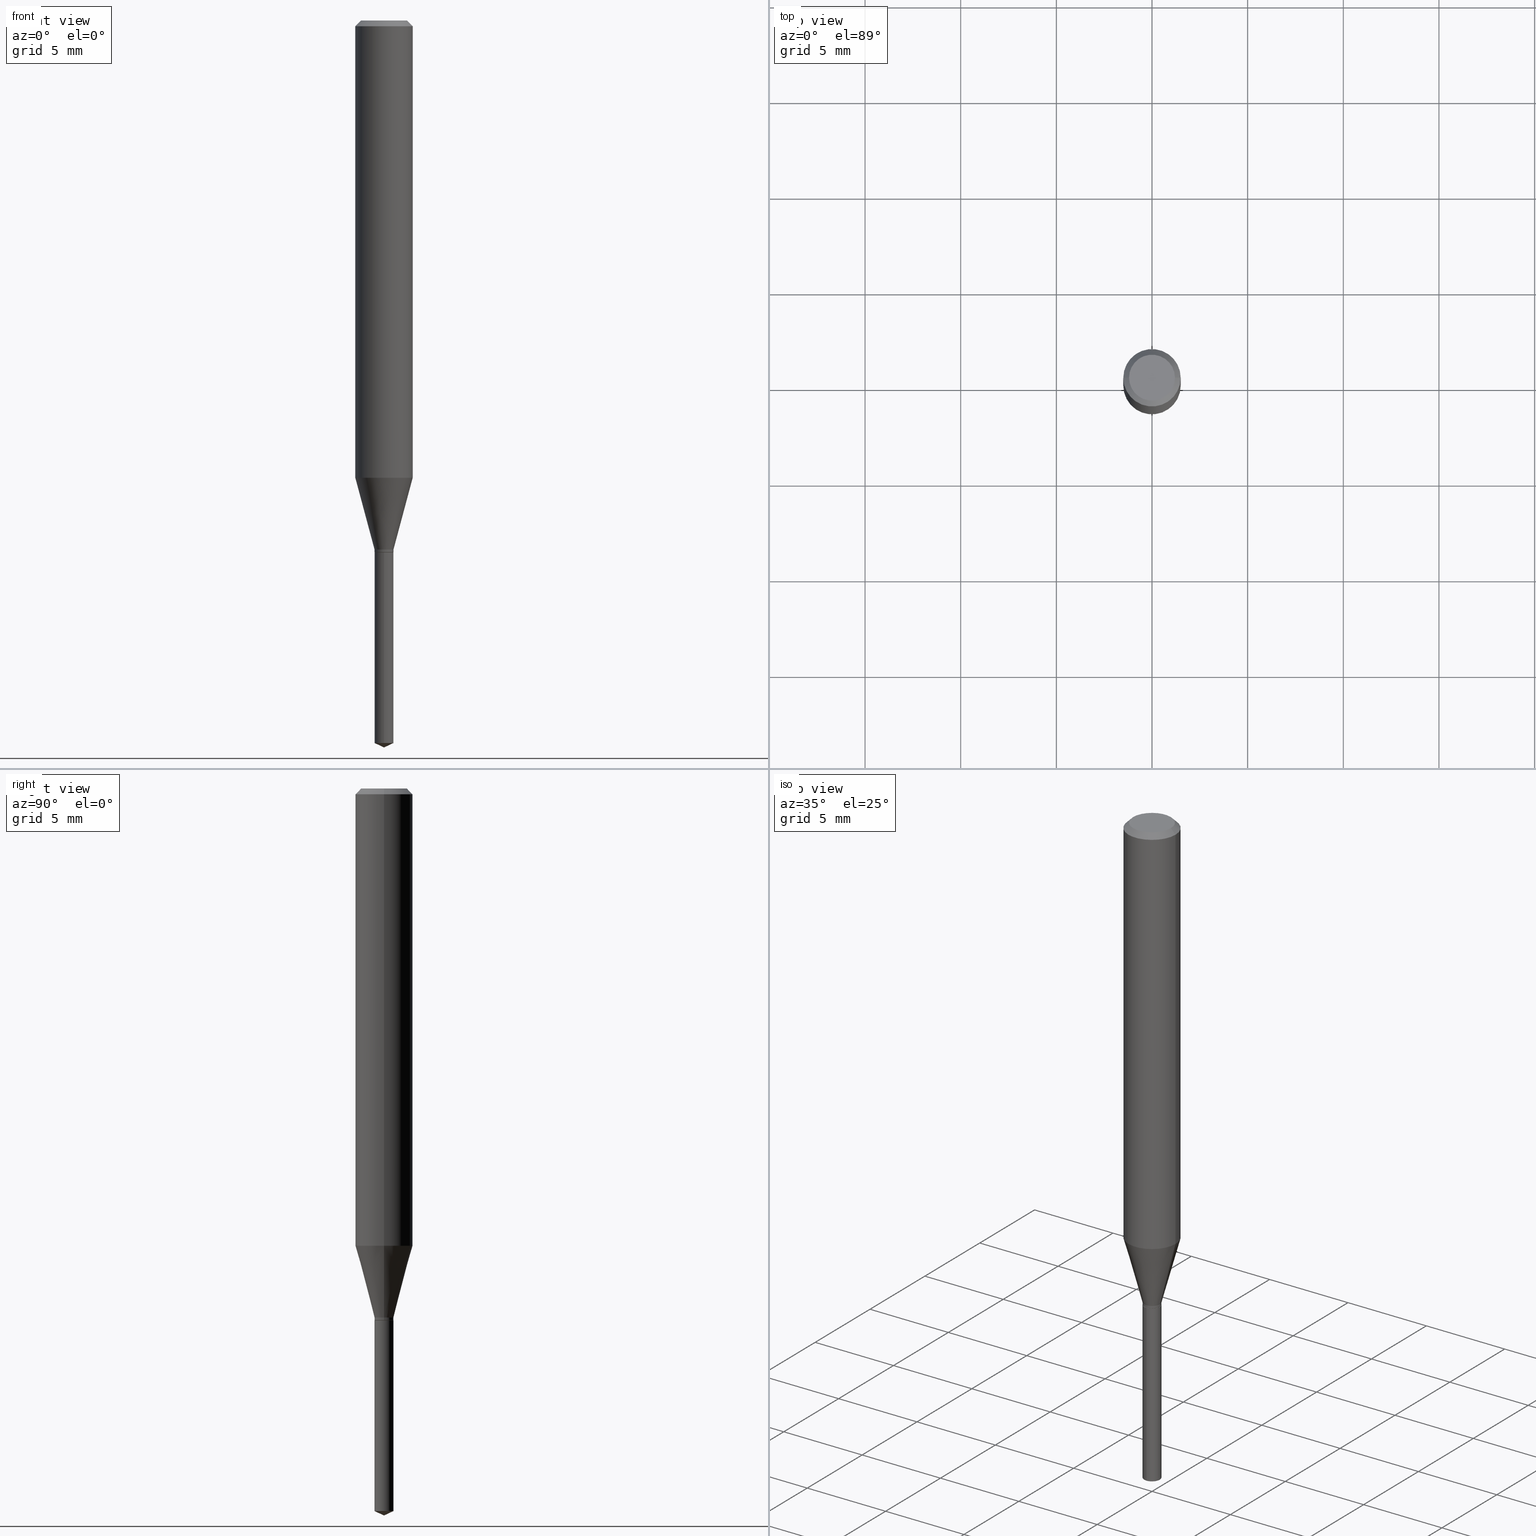
[diagram: canonical four-view strip — front | top / right | iso, engineering-drawing reading convention]
A machine part, canonical four-view strip (front | top / right | iso — engineering-drawing reading convention). The complete STEP part file that produces these views, byte-faithful:
ISO-10303-21;
HEADER;
FILE_DESCRIPTION (( 'STEP AP203' ),
    '1' );
FILE_NAME ('08328.STEP',
    '2024-04-24T14:21:45',
    ( '' ),
    ( '' ),
    'SwSTEP 2.0',
    'SolidWorks 2023',
    '' );
FILE_SCHEMA (( 'CONFIG_CONTROL_DESIGN' ));
ENDSEC;

DATA;
#1 = LINE ( 'NONE', #167, #38 ) ;
#2 = ORIENTED_EDGE ( 'NONE', *, *, #42, .T. ) ;
#3 = CC_DESIGN_PERSON_AND_ORGANIZATION_ASSIGNMENT ( #322, #23, ( #391 ) ) ;
#4 = LOCAL_TIME ( 10, 21, 45.00000000000000000, #428 ) ;
#5 = DIRECTION ( 'NONE',  ( 2.445460715294871217E-29, -3.491492925458510144E-15, -1.000000000000000000 ) ) ;
#6 = EDGE_LOOP ( 'NONE', ( #488, #2, #330, #443 ) ) ;
#7 = FACE_OUTER_BOUND ( 'NONE', #482, .T. ) ;
#8 = ORIENTED_EDGE ( 'NONE', *, *, #270, .F. ) ;
#9 = DIRECTION ( 'NONE',  ( -6.982962677686264344E-15, -1.000000000000000000, 0.000000000000000000 ) ) ;
#10 = DIRECTION ( 'NONE',  ( -2.445468806185136597E-29, 3.491481338843145583E-15, 1.000000000000000000 ) ) ;
#11 = CLOSED_SHELL ( 'NONE', ( #99, #201, #25, #117, #107, #365, #134, #85, #303, #248, #368, #324 ) ) ;
#12 = CC_DESIGN_APPROVAL ( #413, ( #459 ) ) ;
#13 = FACE_OUTER_BOUND ( 'NONE', #263, .T. ) ;
#14 = PERSON_AND_ORGANIZATION ( #34, #298 ) ;
#15 = CARTESIAN_POINT ( 'NONE',  ( 2.888098660104663328E-31, -4.123439461173779030E-17, -0.01181000000000006871 ) ) ;
#16 = PERSON_AND_ORGANIZATION ( #34, #298 ) ;
#17 = CARTESIAN_POINT ( 'NONE',  ( 2.662137342413139764E-29, -3.800826585464648242E-15, -1.088600000000000012 ) ) ;
#18 = CC_DESIGN_DATE_AND_TIME_ASSIGNMENT ( #52, #176, ( #391 ) ) ;
#19 = APPROVAL_STATUS ( 'not_yet_approved' ) ;
#20 = CONICAL_SURFACE ( 'NONE', #408, 0.01899999999999999953, 0.7853981633974119747 ) ;
#21 = DIRECTION ( 'NONE',  ( -2.445468806185136597E-29, 3.491481338843145583E-15, 1.000000000000000000 ) ) ;
#22 = AXIS2_PLACEMENT_3D ( 'NONE', #446, #82, #9 ) ;
#23 = PERSON_AND_ORGANIZATION_ROLE ( 'creator' ) ;
#24 = DIRECTION ( 'NONE',  ( -6.982962677686264344E-15, -1.000000000000000000, 0.000000000000000000 ) ) ;
#25 = ADVANCED_FACE ( 'NONE', ( #383 ), #410, .T. ) ;
#26 = DIRECTION ( 'NONE',  ( -2.445468806185136597E-29, 3.491481338843145583E-15, 1.000000000000000000 ) ) ;
#27 = DIRECTION ( 'NONE',  ( 1.000000000000000000, -6.982962677686266711E-15, 4.876185090822587894E-29 ) ) ;
#28 = ORIENTED_EDGE ( 'NONE', *, *, #58, .F. ) ;
#29 = CONICAL_SURFACE ( 'NONE', #202, 0.01899999999999999953, 0.7853981633974119747 ) ;
#30 = CARTESIAN_POINT ( 'NONE',  ( 8.265746106709734507E-48, -1.180129479067563789E-33, -3.380025165646692144E-19 ) ) ;
#31 = ORIENTED_EDGE ( 'NONE', *, *, #255, .T. ) ;
#32 = DIRECTION ( 'NONE',  ( -6.982962677686264344E-15, -1.000000000000000000, 0.000000000000000000 ) ) ;
#33 = ORIENTED_EDGE ( 'NONE', *, *, #49, .F. ) ;
#34 = PERSON ( 'UNSPECIFIED', 'UNSPECIFIED', 'UNSPECIFIED', ('UNSPECIFIED'), ('UNSPECIFIED'), ('UNSPECIFIED') ) ;
#35 = DIRECTION ( 'NONE',  ( 2.438088387897960049E-29, -3.491481338843145188E-15, -1.000000000000000000 ) ) ;
#36 = VERTEX_POINT ( 'NONE', #417 ) ;
#37 = CONICAL_SURFACE ( 'NONE', #369, 84.42940631927528727, 1.134464013796320225 ) ;
#38 = VECTOR ( 'NONE', #44, 39.37007874015748854 ) ;
#39 = CARTESIAN_POINT ( 'NONE',  ( -0.04724000000000000421, 3.504923541997677355E-16, -3.380025165670481712E-19 ) ) ;
#40 = ORIENTED_EDGE ( 'NONE', *, *, #470, .F. ) ;
#41 = APPLICATION_CONTEXT ( 'configuration controlled 3d designs of mechanical parts and assemblies' ) ;
#42 = EDGE_CURVE ( 'NONE', #476, #190, #81, .T. ) ;
#43 = ORIENTED_EDGE ( 'NONE', *, *, #58, .T. ) ;
#44 = DIRECTION ( 'NONE',  ( 0.2588190451025211281, 1.565188264969622954E-15, 0.9659258262890679791 ) ) ;
#45 = ORIENTED_EDGE ( 'NONE', *, *, #148, .T. ) ;
#46 = AXIS2_PLACEMENT_3D ( 'NONE', #15, #317, #59 ) ;
#47 = CONICAL_SURFACE ( 'NONE', #111, 0.05904999999999999832, 0.7853981633974452814 ) ;
#48 = ORIENTED_EDGE ( 'NONE', *, *, #255, .F. ) ;
#49 = EDGE_CURVE ( 'NONE', #75, #490, #120, .T. ) ;
#50 = APPLICATION_PROTOCOL_DEFINITION ( 'international standard', 'config_control_design', 1994, #41 ) ;
#51 = VERTEX_POINT ( 'NONE', #345 ) ;
#52 = DATE_AND_TIME ( #218, #154 ) ;
#53 = DESIGN_CONTEXT ( 'detailed design', #402, 'design' ) ;
#54 = ORIENTED_EDGE ( 'NONE', *, *, #475, .T. ) ;
#55 = APPROVAL_ROLE ( '' ) ;
#56 = DIRECTION ( 'NONE',  ( 2.445468806185136597E-29, -3.491481338843145583E-15, -1.000000000000000000 ) ) ;
#57 = PERSON_AND_ORGANIZATION_ROLE ( 'design_owner' ) ;
#58 = EDGE_CURVE ( 'NONE', #476, #438, #129, .T. ) ;
#59 = DIRECTION ( 'NONE',  ( 1.000000000000000000, -6.982962677686266711E-15, 0.000000000000000000 ) ) ;
#60 = PERSON_AND_ORGANIZATION ( #34, #298 ) ;
#61 = DIRECTION ( 'NONE',  ( -2.445468806185136597E-29, 3.491481338843145583E-15, 1.000000000000000000 ) ) ;
#62 = AXIS2_PLACEMENT_3D ( 'NONE', #373, #272, #412 ) ;
#63 = DIRECTION ( 'NONE',  ( 1.000000000000000000, -6.982962677686258033E-15, 0.000000000000000000 ) ) ;
#64 = AXIS2_PLACEMENT_3D ( 'NONE', #149, #229, #334 ) ;
#65 = EDGE_CURVE ( 'NONE', #490, #75, #138, .T. ) ;
#66 = FACE_OUTER_BOUND ( 'NONE', #407, .T. ) ;
#67 = CARTESIAN_POINT ( 'NONE',  ( 0.000000000000000000, 0.000000000000000000, 0.000000000000000000 ) ) ;
#68 = ORIENTED_EDGE ( 'NONE', *, *, #451, .T. ) ;
#69 = FACE_OUTER_BOUND ( 'NONE', #278, .T. ) ;
#70 = AXIS2_PLACEMENT_3D ( 'NONE', #285, #56, #212 ) ;
#71 = AXIS2_PLACEMENT_3D ( 'NONE', #124, #5, #311 ) ;
#72 = CARTESIAN_POINT ( 'NONE',  ( 2.888098660104663328E-31, -4.123439461173779030E-17, -0.01181000000000006871 ) ) ;
#73 = CC_DESIGN_PERSON_AND_ORGANIZATION_ASSIGNMENT ( #14, #90, ( #459 ) ) ;
#74 = DIRECTION ( 'NONE',  ( -2.445460715294871217E-29, 3.491492925458510144E-15, 1.000000000000000000 ) ) ;
#75 = VERTEX_POINT ( 'NONE', #325 ) ;
#76 = DIRECTION ( 'NONE',  ( -6.982962677686264344E-15, -1.000000000000000000, 0.000000000000000000 ) ) ;
#77 = ORIENTED_EDGE ( 'NONE', *, *, #207, .T. ) ;
#78 = VECTOR ( 'NONE', #386, 39.37007874015748143 ) ;
#79 = EDGE_CURVE ( 'NONE', #305, #75, #467, .T. ) ;
#80 = LINE ( 'NONE', #271, #171 ) ;
#81 = LINE ( 'NONE', #237, #240 ) ;
#82 = DIRECTION ( 'NONE',  ( -2.445460715294871217E-29, 3.491492925458510144E-15, 1.000000000000000000 ) ) ;
#83 = ORIENTED_EDGE ( 'NONE', *, *, #433, .T. ) ;
#84 = DIRECTION ( 'NONE',  ( 0.000000000000000000, 0.000000000000000000, 1.000000000000000000 ) ) ;
#85 = ADVANCED_FACE ( 'NONE', ( #471 ), #395, .T. ) ;
#86 = EDGE_LOOP ( 'NONE', ( #453, #378, #68, #192 ) ) ;
#87 = CIRCLE ( 'NONE', #46, 0.05904999999999999832 ) ;
#88 =( NAMED_UNIT ( * ) PLANE_ANGLE_UNIT ( ) SI_UNIT ( $, .RADIAN. ) );
#89 = ORIENTED_EDGE ( 'NONE', *, *, #284, .T. ) ;
#90 = PERSON_AND_ORGANIZATION_ROLE ( 'creator' ) ;
#91 = ORIENTED_EDGE ( 'NONE', *, *, #470, .T. ) ;
#92 = DATE_AND_TIME ( #385, #139 ) ;
#93 = DIRECTION ( 'NONE',  ( 6.439704144417042975E-15, 0.9063077870366539335, 0.4226182617406908926 ) ) ;
#94 = EDGE_CURVE ( 'NONE', #36, #170, #448, .T. ) ;
#95 = VECTOR ( 'NONE', #225, 39.37007874015748143 ) ;
#96 = FACE_OUTER_BOUND ( 'NONE', #258, .T. ) ;
#97 = CARTESIAN_POINT ( 'NONE',  ( 0.000000000000000000, 0.000000000000000000, 0.000000000000000000 ) ) ;
#98 = DIRECTION ( 'NONE',  ( -6.982962677686264344E-15, -1.000000000000000000, 0.000000000000000000 ) ) ;
#99 = ADVANCED_FACE ( 'NONE', ( #251 ), #20, .T. ) ;
#100 = VECTOR ( 'NONE', #133, 39.37007874015748143 ) ;
#101 = DIRECTION ( 'NONE',  ( 1.000000000000000000, -6.982962677686255667E-15, 0.000000000000000000 ) ) ;
#102 = VECTOR ( 'NONE', #198, 39.37007874015748143 ) ;
#103 = DIRECTION ( 'NONE',  ( 1.000000000000000000, -6.982962677686266711E-15, 4.876185090822587894E-29 ) ) ;
#104 = ORIENTED_EDGE ( 'NONE', *, *, #79, .F. ) ;
#105 = FACE_OUTER_BOUND ( 'NONE', #128, .T. ) ;
#106 = VERTEX_POINT ( 'NONE', #245 ) ;
#107 = ADVANCED_FACE ( 'NONE', ( #13 ), #463, .T. ) ;
#108 = DIRECTION ( 'NONE',  ( 1.000000000000000000, -6.982962677686255667E-15, 0.000000000000000000 ) ) ;
#109 = ORIENTED_EDGE ( 'NONE', *, *, #356, .T. ) ;
#110 = AXIS2_PLACEMENT_3D ( 'NONE', #266, #74, #184 ) ;
#111 = AXIS2_PLACEMENT_3D ( 'NONE', #72, #437, #484 ) ;
#112 = MANIFOLD_SOLID_BREP ( 'Body-Move/Copy2[1]', #468 ) ;
#113 = FACE_OUTER_BOUND ( 'NONE', #227, .T. ) ;
#114 = ORIENTED_EDGE ( 'NONE', *, *, #356, .F. ) ;
#115 = DIRECTION ( 'NONE',  ( -2.445468806185136597E-29, 3.491481338843145583E-15, 1.000000000000000000 ) ) ;
#116 = ORIENTED_EDGE ( 'NONE', *, *, #380, .T. ) ;
#117 = ADVANCED_FACE ( 'NONE', ( #96 ), #231, .T. ) ;
#118 = LINE ( 'NONE', #160, #233 ) ;
#119 = VERTEX_POINT ( 'NONE', #220 ) ;
#120 = CIRCLE ( 'NONE', #185, 0.01949999999999999997 ) ;
#121 = CIRCLE ( 'NONE', #253, 0.05904999999999999832 ) ;
#122 = DIRECTION ( 'NONE',  ( 1.000000000000000000, -6.982962677686266711E-15, 0.000000000000000000 ) ) ;
#123 = ORIENTED_EDGE ( 'NONE', *, *, #65, .T. ) ;
#124 = CARTESIAN_POINT ( 'NONE',  ( 2.676565608369631794E-29, -3.821426325363822773E-15, -1.094499999999999806 ) ) ;
#125 = DIRECTION ( 'NONE',  ( -6.982962677686264344E-15, -1.000000000000000000, 0.000000000000000000 ) ) ;
#126 = LINE ( 'NONE', #238, #276 ) ;
#127 = CC_DESIGN_DATE_AND_TIME_ASSIGNMENT ( #92, #423, ( #219 ) ) ;
#128 = EDGE_LOOP ( 'NONE', ( #8, #405, #274 ) ) ;
#129 = CIRCLE ( 'NONE', #321, 0.05905000000000010935 ) ;
#130 = APPROVAL_PERSON_ORGANIZATION ( #250, #228, #55 ) ;
#131 = DIRECTION ( 'NONE',  ( 1.000000000000000000, -6.982962677686267499E-15, 0.000000000000000000 ) ) ;
#132 = APPROVAL_STATUS ( 'not_yet_approved' ) ;
#133 = DIRECTION ( 'NONE',  ( -0.7071067811865453523, 2.468850131082234184E-15, -0.7071067811865496822 ) ) ;
#134 = ADVANCED_FACE ( 'NONE', ( #353 ), #400, .T. ) ;
#135 = CALENDAR_DATE ( 2024, 24, 4 ) ;
#136 = CARTESIAN_POINT ( 'NONE',  ( -0.01899999999999999953, -3.683773978395292417E-15, -1.094499999999999806 ) ) ;
#137 = DATE_AND_TIME ( #135, #363 ) ;
#138 = CIRCLE ( 'NONE', #144, 0.01949999999999999997 ) ;
#139 = LOCAL_TIME ( 10, 21, 45.00000000000000000, #319 ) ;
#140 = DIRECTION ( 'NONE',  ( 1.000000000000000000, -6.982962677686258033E-15, 0.000000000000000000 ) ) ;
#141 = PRODUCT_RELATED_PRODUCT_CATEGORY ( 'detail', '', ( #388 ) ) ;
#142 = CARTESIAN_POINT ( 'NONE',  ( 2.676565608369631794E-29, -3.821426325363822773E-15, -1.094499999999999806 ) ) ;
#143 = DIRECTION ( 'NONE',  ( 1.000000000000000000, -6.982962677686258033E-15, 0.000000000000000000 ) ) ;
#144 = AXIS2_PLACEMENT_3D ( 'NONE', #254, #247, #98 ) ;
#145 = CARTESIAN_POINT ( 'NONE',  ( 0.05905000000000005383, -4.123439461173744271E-16, 2.879382386107502672E-30 ) ) ;
#146 = ORIENTED_EDGE ( 'NONE', *, *, #178, .T. ) ;
#147 = LINE ( 'NONE', #337, #102 ) ;
#148 = EDGE_CURVE ( 'NONE', #301, #51, #259, .T. ) ;
#149 = CARTESIAN_POINT ( 'NONE',  ( 2.676565608369631794E-29, -3.821426325363822773E-15, -1.094499999999999806 ) ) ;
#150 = ORIENTED_EDGE ( 'NONE', *, *, #222, .T. ) ;
#151 = DIRECTION ( 'NONE',  ( -2.445460715294871217E-29, 3.491492925458510144E-15, 1.000000000000000000 ) ) ;
#152 = AXIS2_PLACEMENT_3D ( 'NONE', #326, #35, #434 ) ;
#153 = EDGE_LOOP ( 'NONE', ( #338, #381, #91, #435 ) ) ;
#154 = LOCAL_TIME ( 10, 21, 45.00000000000000000, #421 ) ;
#155 = LINE ( 'NONE', #257, #333 ) ;
#156 = EDGE_CURVE ( 'NONE', #403, #190, #390, .T. ) ;
#157 = ORIENTED_EDGE ( 'NONE', *, *, #270, .T. ) ;
#158 = LENGTH_MEASURE_WITH_UNIT ( LENGTH_MEASURE( 0.02539999999999999897 ), #455 );
#159 = ORIENTED_EDGE ( 'NONE', *, *, #288, .T. ) ;
#160 = CARTESIAN_POINT ( 'NONE',  ( -0.01899999999999999953, -3.686423205569403618E-15, -1.094499999999999806 ) ) ;
#161 = UNCERTAINTY_MEASURE_WITH_UNIT (LENGTH_MEASURE( 1.000000000000000082E-05 ), #164, 'distance_accuracy_value', 'NONE');
#162 = ORIENTED_EDGE ( 'NONE', *, *, #94, .T. ) ;
#163 = VECTOR ( 'NONE', #479, 39.37007874015748143 ) ;
#164 =( CONVERSION_BASED_UNIT ( 'INCH', #158 ) LENGTH_UNIT ( ) NAMED_UNIT ( #454 ) );
#165 = ORIENTED_EDGE ( 'NONE', *, *, #42, .F. ) ;
#166 = EDGE_CURVE ( 'NONE', #106, #372, #283, .T. ) ;
#167 = CARTESIAN_POINT ( 'NONE',  ( 0.01949999999999999997, -3.936994357679530254E-15, -1.088600000000000012 ) ) ;
#168 = ORIENTED_EDGE ( 'NONE', *, *, #475, .F. ) ;
#169 = DIRECTION ( 'NONE',  ( -2.445460715294871217E-29, 3.491492925458510144E-15, 1.000000000000000000 ) ) ;
#170 = VERTEX_POINT ( 'NONE', #136 ) ;
#171 = VECTOR ( 'NONE', #309, 39.37007874015748143 ) ;
#172 = EDGE_CURVE ( 'NONE', #299, #119, #275, .T. ) ;
#173 = DIRECTION ( 'NONE',  ( -2.445468806185136597E-29, 3.491481338843145583E-15, 1.000000000000000000 ) ) ;
#174 = SHAPE_DEFINITION_REPRESENTATION ( #377, #441 ) ;
#175 = DIRECTION ( 'NONE',  ( -2.445468806185136597E-29, 3.491481338843145583E-15, 1.000000000000000000 ) ) ;
#176 = DATE_TIME_ROLE ( 'creation_date' ) ;
#177 = FACE_OUTER_BOUND ( 'NONE', #485, .T. ) ;
#178 = EDGE_CURVE ( 'NONE', #119, #299, #195, .T. ) ;
#179 = PERSON_AND_ORGANIZATION_ROLE ( 'design_supplier' ) ;
#180 = AXIS2_PLACEMENT_3D ( 'NONE', #360, #151, #32 ) ;
#181 = CIRCLE ( 'NONE', #379, 0.01899999999999999953 ) ;
#182 = DIRECTION ( 'NONE',  ( -2.445468806185136597E-29, 3.491481338843145583E-15, 1.000000000000000000 ) ) ;
#183 = DIRECTION ( 'NONE',  ( -2.445468806185136597E-29, 3.491481338843145583E-15, 1.000000000000000000 ) ) ;
#184 = DIRECTION ( 'NONE',  ( -6.982962677686266711E-15, -1.000000000000000000, 3.520397390770414427E-15 ) ) ;
#185 = AXIS2_PLACEMENT_3D ( 'NONE', #199, #200, #125 ) ;
#186 = CARTESIAN_POINT ( 'NONE',  ( 3.658653776152655930E-29, -5.223622565778476142E-15, -1.496099999999999985 ) ) ;
#187 = CC_DESIGN_PERSON_AND_ORGANIZATION_ASSIGNMENT ( #60, #57, ( #388 ) ) ;
#188 = EDGE_LOOP ( 'NONE', ( #302, #343 ) ) ;
#189 = CARTESIAN_POINT ( 'NONE',  ( 2.676565608369631794E-29, -3.821426325363822773E-15, -1.094499999999999806 ) ) ;
#190 = VERTEX_POINT ( 'NONE', #347 ) ;
#191 = CYLINDRICAL_SURFACE ( 'NONE', #355, 0.01949999999999999997 ) ;
#192 = ORIENTED_EDGE ( 'NONE', *, *, #166, .F. ) ;
#193 = EDGE_CURVE ( 'NONE', #75, #106, #389, .T. ) ;
#194 = DIRECTION ( 'NONE',  ( -6.328713451373388311E-15, -0.9063077870366510469, 0.4226182617406972208 ) ) ;
#195 = CIRCLE ( 'NONE', #295, 0.01949999999999999997 ) ;
#196 = ORIENTED_EDGE ( 'NONE', *, *, #172, .F. ) ;
#197 = CARTESIAN_POINT ( 'NONE',  ( -0.05905000000000010935, -2.865899343576267000E-15, -0.9409973905606506817 ) ) ;
#198 = DIRECTION ( 'NONE',  ( -2.445468806185136877E-29, 3.491481338843145188E-15, 1.000000000000000000 ) ) ;
#199 = CARTESIAN_POINT ( 'NONE',  ( 3.636426058976498027E-29, -5.191861741382022382E-15, -1.487007000665977685 ) ) ;
#200 = DIRECTION ( 'NONE',  ( -2.445460715294871217E-29, 3.491492925458510144E-15, 1.000000000000000000 ) ) ;
#201 = ADVANCED_FACE ( 'NONE', ( #177 ), #224, .T. ) ;
#202 = AXIS2_PLACEMENT_3D ( 'NONE', #367, #226, #108 ) ;
#203 = DIRECTION ( 'NONE',  ( 1.000000000000000000, 0.000000000000000000, 0.000000000000000000 ) ) ;
#204 = ORIENTED_EDGE ( 'NONE', *, *, #288, .F. ) ;
#205 = CARTESIAN_POINT ( 'NONE',  ( 0.000000000000000000, 0.000000000000000000, 0.000000000000000000 ) ) ;
#206 = ORIENTED_EDGE ( 'NONE', *, *, #451, .F. ) ;
#207 = EDGE_CURVE ( 'NONE', #51, #476, #351, .T. ) ;
#208 = APPROVAL_DATE_TIME ( #137, #228 ) ;
#209 = DIRECTION ( 'NONE',  ( -2.445468806185136597E-29, 3.491481338843145583E-15, 1.000000000000000000 ) ) ;
#210 = VECTOR ( 'NONE', #366, 39.37007874015748143 ) ;
#211 = COORDINATED_UNIVERSAL_TIME_OFFSET ( 5, 0, .BEHIND. ) ;
#212 = DIRECTION ( 'NONE',  ( -1.000000000000000000, 6.982962677686266711E-15, 0.000000000000000000 ) ) ;
#213 = CARTESIAN_POINT ( 'NONE',  ( 2.675342873966538993E-29, -3.819680584694400481E-15, -1.093999999999999861 ) ) ;
#214 = DATE_AND_TIME ( #349, #341 ) ;
#215 = DIRECTION ( 'NONE',  ( -2.445468806185136597E-29, 3.491481338843145583E-15, 1.000000000000000000 ) ) ;
#216 = CC_DESIGN_PERSON_AND_ORGANIZATION_ASSIGNMENT ( #242, #179, ( #459 ) ) ;
#217 = CONICAL_SURFACE ( 'NONE', #110, 84.42940631927528727, 1.134464013796320225 ) ;
#218 = CALENDAR_DATE ( 2024, 24, 4 ) ;
#219 = SECURITY_CLASSIFICATION ( '', '', #346 ) ;
#220 = CARTESIAN_POINT ( 'NONE',  ( -0.01949999999999999997, -3.671697751606305097E-15, -1.093999999999999861 ) ) ;
#221 = DIRECTION ( 'NONE',  ( -2.445468806185136597E-29, 3.491481338843145583E-15, 1.000000000000000000 ) ) ;
#222 = EDGE_CURVE ( 'NONE', #190, #361, #87, .T. ) ;
#223 = DIRECTION ( 'NONE',  ( -2.445460715294871217E-29, 3.491492925458510144E-15, 1.000000000000000000 ) ) ;
#224 = CONICAL_SURFACE ( 'NONE', #70, 0.05904999999999999832, 0.7853981633974452814 ) ;
#225 = DIRECTION ( 'NONE',  ( -2.445468806185136877E-29, 3.491481338843145188E-15, 1.000000000000000000 ) ) ;
#226 = DIRECTION ( 'NONE',  ( -2.445468806185136597E-29, 3.491481338843145583E-15, 1.000000000000000000 ) ) ;
#227 = EDGE_LOOP ( 'NONE', ( #114, #204, #307, #150 ) ) ;
#228 = APPROVAL ( #357, 'UNSPECIFIED' ) ;
#229 = DIRECTION ( 'NONE',  ( -2.438088387897960049E-29, 3.491481338843145188E-15, 1.000000000000000000 ) ) ;
#230 = CARTESIAN_POINT ( 'NONE',  ( 2.676565608369631794E-29, -3.821426325363822773E-15, -1.094499999999999806 ) ) ;
#231 = CONICAL_SURFACE ( 'NONE', #477, 0.01949999999999999997, 0.2617993877991498519 ) ;
#232 = ORIENTED_EDGE ( 'NONE', *, *, #222, .F. ) ;
#233 = VECTOR ( 'NONE', #304, 39.37007874015748143 ) ;
#234 =( NAMED_UNIT ( * ) SI_UNIT ( $, .STERADIAN. ) SOLID_ANGLE_UNIT ( ) );
#235 = EDGE_LOOP ( 'NONE', ( #162, #83, #196, #40 ) ) ;
#236 = ADVANCED_FACE ( 'NONE', ( #105 ), #217, .T. ) ;
#237 = CARTESIAN_POINT ( 'NONE',  ( -0.05905000000000005383, 4.195754854663395423E-16, -2.904631170795524694E-30 ) ) ;
#238 = CARTESIAN_POINT ( 'NONE',  ( -1.361677722148554121E-16, -0.01950000000000381983, -1.094499999999999806 ) ) ;
#239 = ORIENTED_EDGE ( 'NONE', *, *, #193, .T. ) ;
#240 = VECTOR ( 'NONE', #461, 39.37007874015748143 ) ;
#241 = ORIENTED_EDGE ( 'NONE', *, *, #318, .F. ) ;
#242 = PERSON_AND_ORGANIZATION ( #34, #298 ) ;
#243 = EDGE_LOOP ( 'NONE', ( #165, #43, #265, #232 ) ) ;
#244 = APPROVAL_ROLE ( '' ) ;
#245 = CARTESIAN_POINT ( 'NONE',  ( 1.385558334732559469E-16, 0.01949999999999617664, -1.094499999999999806 ) ) ;
#246 = AXIS2_PLACEMENT_3D ( 'NONE', #429, #61, #323 ) ;
#247 = DIRECTION ( 'NONE',  ( -2.445460715294871217E-29, 3.491492925458510144E-15, 1.000000000000000000 ) ) ;
#248 = ADVANCED_FACE ( 'NONE', ( #297 ), #444, .F. ) ;
#249 = CARTESIAN_POINT ( 'NONE',  ( 2.662137342413139764E-29, -3.800826585464648242E-15, -1.088600000000000012 ) ) ;
#250 = PERSON_AND_ORGANIZATION ( #34, #298 ) ;
#251 = FACE_OUTER_BOUND ( 'NONE', #235, .T. ) ;
#252 = VECTOR ( 'NONE', #424, 39.37007874015748854 ) ;
#253 = AXIS2_PLACEMENT_3D ( 'NONE', #371, #452, #122 ) ;
#254 = CARTESIAN_POINT ( 'NONE',  ( 3.636426058976498027E-29, -5.191861741382022382E-15, -1.487007000665977685 ) ) ;
#255 = EDGE_CURVE ( 'NONE', #372, #106, #339, .T. ) ;
#256 = CARTESIAN_POINT ( 'NONE',  ( 0.01949999999999999997, -3.955848356909282492E-15, -1.093999999999999861 ) ) ;
#257 = CARTESIAN_POINT ( 'NONE',  ( 3.658653776152657051E-29, -5.223622565778476142E-15, -1.496099999999999985 ) ) ;
#258 = EDGE_LOOP ( 'NONE', ( #45, #77, #340, #310 ) ) ;
#259 = CIRCLE ( 'NONE', #362, 0.01949999999999999997 ) ;
#260 = LINE ( 'NONE', #396, #163 ) ;
#261 = ADVANCED_FACE ( 'NONE', ( #66 ), #37, .T. ) ;
#262 = CIRCLE ( 'NONE', #426, 0.05905000000000010935 ) ;
#263 = EDGE_LOOP ( 'NONE', ( #445, #450, #267, #375 ) ) ;
#264 = FACE_OUTER_BOUND ( 'NONE', #188, .T. ) ;
#265 = ORIENTED_EDGE ( 'NONE', *, *, #335, .T. ) ;
#266 = CARTESIAN_POINT ( 'NONE',  ( -9.261931828548885815E-28, 1.322367415117763772E-13, 37.87397874015748300 ) ) ;
#267 = ORIENTED_EDGE ( 'NONE', *, *, #148, .F. ) ;
#268 = ORIENTED_EDGE ( 'NONE', *, *, #156, .F. ) ;
#269 = AXIS2_PLACEMENT_3D ( 'NONE', #205, #84, #203 ) ;
#270 = EDGE_CURVE ( 'NONE', #305, #490, #155, .T. ) ;
#271 = CARTESIAN_POINT ( 'NONE',  ( 0.01899999999999999953, -3.954102616239861778E-15, -1.094499999999999806 ) ) ;
#272 = DIRECTION ( 'NONE',  ( -2.445468806185136597E-29, 3.491481338843145583E-15, 1.000000000000000000 ) ) ;
#273 = CARTESIAN_POINT ( 'NONE',  ( 2.301179765317683209E-29, -3.285474829042607282E-15, -0.9409973905606506817 ) ) ;
#274 = ORIENTED_EDGE ( 'NONE', *, *, #65, .F. ) ;
#275 = CIRCLE ( 'NONE', #354, 0.01949999999999999997 ) ;
#276 = VECTOR ( 'NONE', #169, 39.37007874015748143 ) ;
#277 = PERSON_AND_ORGANIZATION ( #34, #298 ) ;
#278 = EDGE_LOOP ( 'NONE', ( #241, #146, #116, #168 ) ) ;
#279 = APPROVAL_ROLE ( '' ) ;
#280 = DIRECTION ( 'NONE',  ( -2.445460715294871217E-29, 3.491492925458510144E-15, 1.000000000000000000 ) ) ;
#281 = CALENDAR_DATE ( 2024, 24, 4 ) ;
#282 = DIRECTION ( 'NONE',  ( 1.000000000000000000, -6.982962677686266711E-15, 4.876176775795935793E-29 ) ) ;
#283 = CIRCLE ( 'NONE', #425, 0.01949999999999999997 ) ;
#284 = EDGE_CURVE ( 'NONE', #399, #403, #289, .T. ) ;
#285 = CARTESIAN_POINT ( 'NONE',  ( 2.888098660104663328E-31, -4.123439461173779030E-17, -0.01181000000000006871 ) ) ;
#286 = DIRECTION ( 'NONE',  ( 1.000000000000000000, -6.982962677686258033E-15, 0.000000000000000000 ) ) ;
#287 = DIRECTION ( 'NONE',  ( 1.000000000000000000, -6.982962677686258033E-15, 0.000000000000000000 ) ) ;
#288 = EDGE_CURVE ( 'NONE', #403, #399, #486, .T. ) ;
#289 = CIRCLE ( 'NONE', #348, 0.04724000000000000421 ) ;
#290 = CC_DESIGN_APPROVAL ( #228, ( #219 ) ) ;
#291 = LINE ( 'NONE', #300, #210 ) ;
#292 = CARTESIAN_POINT ( 'NONE',  ( 2.301179765317683209E-29, -3.285474829042607282E-15, -0.9409973905606506817 ) ) ;
#293 = DIRECTION ( 'NONE',  ( -2.445468806185136597E-29, 3.491481338843145583E-15, 1.000000000000000000 ) ) ;
#294 = EDGE_CURVE ( 'NONE', #438, #476, #262, .T. ) ;
#295 = AXIS2_PLACEMENT_3D ( 'NONE', #473, #175, #143 ) ;
#296 = APPROVAL_PERSON_ORGANIZATION ( #462, #350, #279 ) ;
#297 = FACE_OUTER_BOUND ( 'NONE', #456, .T. ) ;
#298 = ORGANIZATION ( 'UNSPECIFIED', 'UNSPECIFIED', '' ) ;
#299 = VERTEX_POINT ( 'NONE', #256 ) ;
#300 = CARTESIAN_POINT ( 'NONE',  ( -0.01949999999999999997, 1.385558334732195360E-16, -9.591923425997065392E-31 ) ) ;
#301 = VERTEX_POINT ( 'NONE', #401 ) ;
#302 = ORIENTED_EDGE ( 'NONE', *, *, #94, .F. ) ;
#303 = ADVANCED_FACE ( 'NONE', ( #113 ), #47, .T. ) ;
#304 = DIRECTION ( 'NONE',  ( -0.7071067811865218156, 7.493145998870261075E-15, 0.7071067811865732189 ) ) ;
#305 = VERTEX_POINT ( 'NONE', #186 ) ;
#306 = PLANE ( 'NONE',  #71 ) ;
#307 = ORIENTED_EDGE ( 'NONE', *, *, #156, .T. ) ;
#308 = CC_DESIGN_PERSON_AND_ORGANIZATION_ASSIGNMENT ( #16, #464, ( #219 ) ) ;
#309 = DIRECTION ( 'NONE',  ( 0.7071067811865218156, -2.468850131081987665E-15, 0.7071067811865732189 ) ) ;
#310 = ORIENTED_EDGE ( 'NONE', *, *, #420, .F. ) ;
#311 = DIRECTION ( 'NONE',  ( 6.982962677686265922E-15, 1.000000000000000000, -3.491492925458510144E-15 ) ) ;
#312 = EDGE_LOOP ( 'NONE', ( #419, #54, #328, #28 ) ) ;
#313 = VECTOR ( 'NONE', #93, 39.37007874015748854 ) ;
#314 = CIRCLE ( 'NONE', #478, 0.01949999999999999997 ) ;
#315 = MECHANICAL_CONTEXT ( 'NONE', #41, 'mechanical' ) ;
#316 = CARTESIAN_POINT ( 'NONE',  ( -0.05904999999999999832, 3.711095515056362547E-16, -0.01181000000000006871 ) ) ;
#317 = DIRECTION ( 'NONE',  ( -2.445468806185136597E-29, 3.491481338843145583E-15, 1.000000000000000000 ) ) ;
#318 = EDGE_CURVE ( 'NONE', #119, #51, #291, .T. ) ;
#319 = COORDINATED_UNIVERSAL_TIME_OFFSET ( 5, 0, .BEHIND. ) ;
#320 = CARTESIAN_POINT ( 'NONE',  ( 2.676565608369631794E-29, -3.821426325363822773E-15, -1.094499999999999806 ) ) ;
#321 = AXIS2_PLACEMENT_3D ( 'NONE', #273, #10, #131 ) ;
#322 = PERSON_AND_ORGANIZATION ( #34, #298 ) ;
#323 = DIRECTION ( 'NONE',  ( 1.000000000000000000, -6.982962677686265922E-15, 4.876176775795935793E-29 ) ) ;
#324 = ADVANCED_FACE ( 'NONE', ( #359 ), #29, .T. ) ;
#325 = CARTESIAN_POINT ( 'NONE',  ( 1.385558334732558236E-16, 0.01949999999999480274, -1.487007000665977685 ) ) ;
#326 = CARTESIAN_POINT ( 'NONE',  ( 4.132873053354867254E-48, -5.900647395337818946E-34, -1.690012582823346072E-19 ) ) ;
#327 = DIRECTION ( 'NONE',  ( 1.000000000000000000, -6.982962677686255667E-15, 0.000000000000000000 ) ) ;
#328 = ORIENTED_EDGE ( 'NONE', *, *, #420, .T. ) ;
#329 = CARTESIAN_POINT ( 'NONE',  ( -9.261931828548885815E-28, 1.322367415117763772E-13, 37.87397874015748300 ) ) ;
#330 = ORIENTED_EDGE ( 'NONE', *, *, #460, .F. ) ;
#331 = EDGE_CURVE ( 'NONE', #170, #36, #181, .T. ) ;
#332 = CARTESIAN_POINT ( 'NONE',  ( 8.265746106709734507E-48, -1.180129479067563789E-33, -3.380025165646692144E-19 ) ) ;
#333 = VECTOR ( 'NONE', #194, 39.37007874015748143 ) ;
#334 = DIRECTION ( 'NONE',  ( 1.000000000000000000, -6.982962677686265922E-15, 4.876176775795935793E-29 ) ) ;
#335 = EDGE_CURVE ( 'NONE', #438, #361, #474, .T. ) ;
#336 = EDGE_LOOP ( 'NONE', ( #31, #480 ) ) ;
#337 = CARTESIAN_POINT ( 'NONE',  ( 0.01949999999999999997, -1.361677722148821841E-16, 9.508544712802074656E-31 ) ) ;
#338 = ORIENTED_EDGE ( 'NONE', *, *, #433, .F. ) ;
#339 = CIRCLE ( 'NONE', #180, 0.01949999999999999997 ) ;
#340 = ORIENTED_EDGE ( 'NONE', *, *, #294, .F. ) ;
#341 = LOCAL_TIME ( 10, 21, 45.00000000000000000, #211 ) ;
#342 = DIRECTION ( 'NONE',  ( -2.445460715294871217E-29, 3.491492925458510144E-15, 1.000000000000000000 ) ) ;
#343 = ORIENTED_EDGE ( 'NONE', *, *, #331, .F. ) ;
#344 = CARTESIAN_POINT ( 'NONE',  ( 0.04724000000000000421, -3.852183633974369345E-16, -3.380025165621689721E-19 ) ) ;
#345 = CARTESIAN_POINT ( 'NONE',  ( -0.01949999999999999997, -3.671697751606305097E-15, -1.088600000000000012 ) ) ;
#346 = SECURITY_CLASSIFICATION_LEVEL ( 'unclassified' ) ;
#347 = CARTESIAN_POINT ( 'NONE',  ( -0.05904999999999999832, -1.243779126360832618E-15, -0.01181000000000006871 ) ) ;
#348 = AXIS2_PLACEMENT_3D ( 'NONE', #30, #221, #27 ) ;
#349 = CALENDAR_DATE ( 2024, 24, 4 ) ;
#350 = APPROVAL ( #132, 'UNSPECIFIED' ) ;
#351 = LINE ( 'NONE', #427, #252 ) ;
#352 = DIRECTION ( 'NONE',  ( 1.000000000000000000, -6.982962677686255667E-15, 0.000000000000000000 ) ) ;
#353 = FACE_OUTER_BOUND ( 'NONE', #312, .T. ) ;
#354 = AXIS2_PLACEMENT_3D ( 'NONE', #213, #183, #140 ) ;
#355 = AXIS2_PLACEMENT_3D ( 'NONE', #67, #115, #364 ) ;
#356 = EDGE_CURVE ( 'NONE', #399, #361, #260, .T. ) ;
#357 = APPROVAL_STATUS ( 'not_yet_approved' ) ;
#358 = CARTESIAN_POINT ( 'NONE',  ( 2.676565608369631794E-29, -3.821426325363822773E-15, -1.094499999999999806 ) ) ;
#359 = FACE_OUTER_BOUND ( 'NONE', #153, .T. ) ;
#360 = CARTESIAN_POINT ( 'NONE',  ( 2.676565608369631794E-29, -3.821426325363822773E-15, -1.094499999999999806 ) ) ;
#361 = VERTEX_POINT ( 'NONE', #481 ) ;
#362 = AXIS2_PLACEMENT_3D ( 'NONE', #17, #21, #286 ) ;
#363 = LOCAL_TIME ( 10, 21, 45.00000000000000000, #392 ) ;
#364 = DIRECTION ( 'NONE',  ( 1.000000000000000000, -6.982962677686265922E-15, 4.876176775795935793E-29 ) ) ;
#365 = ADVANCED_FACE ( 'NONE', ( #69 ), #191, .T. ) ;
#366 = DIRECTION ( 'NONE',  ( -2.445468806185136877E-29, 3.491481338843145188E-15, 1.000000000000000000 ) ) ;
#367 = CARTESIAN_POINT ( 'NONE',  ( 2.676565608369631794E-29, -3.821426325363822773E-15, -1.094499999999999806 ) ) ;
#368 = ADVANCED_FACE ( 'NONE', ( #264 ), #404, .F. ) ;
#369 = AXIS2_PLACEMENT_3D ( 'NONE', #329, #223, #432 ) ;
#370 = CC_DESIGN_APPROVAL ( #350, ( #391 ) ) ;
#371 = CARTESIAN_POINT ( 'NONE',  ( 2.888098660104663328E-31, -4.123439461173779030E-17, -0.01181000000000006871 ) ) ;
#372 = VERTEX_POINT ( 'NONE', #487 ) ;
#373 = CARTESIAN_POINT ( 'NONE',  ( 0.000000000000000000, 0.000000000000000000, 0.000000000000000000 ) ) ;
#374 = CYLINDRICAL_SURFACE ( 'NONE', #22, 0.01949999999999999997 ) ;
#375 = ORIENTED_EDGE ( 'NONE', *, *, #380, .F. ) ;
#376 = CARTESIAN_POINT ( 'NONE',  ( -1.361677722148457732E-16, -0.01950000000000518333, -1.487007000665977685 ) ) ;
#377 = PRODUCT_DEFINITION_SHAPE ( 'NONE', 'NONE',  #391 ) ;
#378 = ORIENTED_EDGE ( 'NONE', *, *, #49, .T. ) ;
#379 = AXIS2_PLACEMENT_3D ( 'NONE', #189, #26, #327 ) ;
#380 = EDGE_CURVE ( 'NONE', #299, #301, #147, .T. ) ;
#381 = ORIENTED_EDGE ( 'NONE', *, *, #331, .T. ) ;
#382 = APPLICATION_PROTOCOL_DEFINITION ( 'international standard', 'config_control_design', 1994, #402 ) ;
#383 = FACE_OUTER_BOUND ( 'NONE', #6, .T. ) ;
#384 = ADVANCED_FACE ( 'NONE', ( #406 ), #409, .T. ) ;
#385 = CALENDAR_DATE ( 2024, 24, 4 ) ;
#386 = DIRECTION ( 'NONE',  ( -2.445460715294871217E-29, 3.491492925458510144E-15, 1.000000000000000000 ) ) ;
#387 = AXIS2_PLACEMENT_3D ( 'NONE', #97, #430, #282 ) ;
#388 = PRODUCT ( '08328', '08328', '', ( #315 ) ) ;
#389 = LINE ( 'NONE', #422, #78 ) ;
#390 = LINE ( 'NONE', #316, #100 ) ;
#391 = PRODUCT_DEFINITION ( 'UNKNOWN', '', #459, #53 ) ;
#392 = COORDINATED_UNIVERSAL_TIME_OFFSET ( 5, 0, .BEHIND. ) ;
#393 = CARTESIAN_POINT ( 'NONE',  ( 2.662137342413139764E-29, -3.800826585464648242E-15, -1.088600000000000012 ) ) ;
#394 = CC_DESIGN_SECURITY_CLASSIFICATION ( #219, ( #459 ) ) ;
#395 = CYLINDRICAL_SURFACE ( 'NONE', #387, 0.05905000000000005383 ) ;
#396 = CARTESIAN_POINT ( 'NONE',  ( 0.05904999999999999832, -4.463468013801466955E-16, -0.01181000000000006871 ) ) ;
#397 = ADVANCED_FACE ( 'NONE', ( #7 ), #374, .T. ) ;
#398 = DIRECTION ( 'NONE',  ( 1.000000000000000000, -6.982962677686267499E-15, 0.000000000000000000 ) ) ;
#399 = VERTEX_POINT ( 'NONE', #344 ) ;
#400 = CONICAL_SURFACE ( 'NONE', #439, 0.01949999999999999997, 0.2617993877991498519 ) ;
#401 = CARTESIAN_POINT ( 'NONE',  ( 0.01949999999999999997, -3.936994357679530254E-15, -1.088600000000000012 ) ) ;
#402 = APPLICATION_CONTEXT ( 'configuration controlled 3d designs of mechanical parts and assemblies' ) ;
#403 = VERTEX_POINT ( 'NONE', #39 ) ;
#404 = PLANE ( 'NONE',  #64 ) ;
#405 = ORIENTED_EDGE ( 'NONE', *, *, #79, .T. ) ;
#406 = FACE_OUTER_BOUND ( 'NONE', #86, .T. ) ;
#407 = EDGE_LOOP ( 'NONE', ( #104, #157, #33 ) ) ;
#408 = AXIS2_PLACEMENT_3D ( 'NONE', #142, #209, #352 ) ;
#409 = CYLINDRICAL_SURFACE ( 'NONE', #440, 0.01949999999999999997 ) ;
#410 = CYLINDRICAL_SURFACE ( 'NONE', #62, 0.05905000000000005383 ) ;
#411 = DIRECTION ( 'NONE',  ( 1.000000000000000000, -6.982962677686258033E-15, 0.000000000000000000 ) ) ;
#412 = DIRECTION ( 'NONE',  ( 1.000000000000000000, -6.982962677686266711E-15, 4.876176775795935793E-29 ) ) ;
#413 = APPROVAL ( #19, 'UNSPECIFIED' ) ;
#414 = ORIENTED_EDGE ( 'NONE', *, *, #460, .T. ) ;
#415 = CARTESIAN_POINT ( 'NONE',  ( 2.662137342413139764E-29, -3.800826585464648242E-15, -1.088600000000000012 ) ) ;
#416 =( GEOMETRIC_REPRESENTATION_CONTEXT ( 3 ) GLOBAL_UNCERTAINTY_ASSIGNED_CONTEXT ( ( #161 ) ) GLOBAL_UNIT_ASSIGNED_CONTEXT ( ( #164, #88, #234 ) ) REPRESENTATION_CONTEXT ( 'NONE', 'WORKASPACE' ) );
#417 = CARTESIAN_POINT ( 'NONE',  ( 0.01899999999999999953, -3.954102616239861778E-15, -1.094499999999999806 ) ) ;
#418 = APPROVAL_DATE_TIME ( #472, #413 ) ;
#419 = ORIENTED_EDGE ( 'NONE', *, *, #207, .F. ) ;
#420 = EDGE_CURVE ( 'NONE', #301, #438, #1, .T. ) ;
#421 = COORDINATED_UNIVERSAL_TIME_OFFSET ( 5, 0, .BEHIND. ) ;
#422 = CARTESIAN_POINT ( 'NONE',  ( 1.385558334732462587E-16, 0.01949999999999617664, -1.094499999999999806 ) ) ;
#423 = DATE_TIME_ROLE ( 'classification_date' ) ;
#424 = DIRECTION ( 'NONE',  ( -0.2588190451025211281, 5.211531920934547886E-15, 0.9659258262890679791 ) ) ;
#425 = AXIS2_PLACEMENT_3D ( 'NONE', #358, #280, #24 ) ;
#426 = AXIS2_PLACEMENT_3D ( 'NONE', #292, #442, #398 ) ;
#427 = CARTESIAN_POINT ( 'NONE',  ( -0.01949999999999999997, -3.662270751991428189E-15, -1.088600000000000012 ) ) ;
#428 = COORDINATED_UNIVERSAL_TIME_OFFSET ( 5, 0, .BEHIND. ) ;
#429 = CARTESIAN_POINT ( 'NONE',  ( 0.000000000000000000, 0.000000000000000000, 0.000000000000000000 ) ) ;
#430 = DIRECTION ( 'NONE',  ( -2.445468806185136597E-29, 3.491481338843145583E-15, 1.000000000000000000 ) ) ;
#431 = APPROVAL_PERSON_ORGANIZATION ( #277, #413, #244 ) ;
#432 = DIRECTION ( 'NONE',  ( -6.982962677686266711E-15, -1.000000000000000000, 3.520397390770414427E-15 ) ) ;
#433 = EDGE_CURVE ( 'NONE', #170, #119, #118, .T. ) ;
#434 = DIRECTION ( 'NONE',  ( -1.000000000000000000, 6.982962677686265922E-15, -4.876176775795935793E-29 ) ) ;
#435 = ORIENTED_EDGE ( 'NONE', *, *, #178, .F. ) ;
#436 = MANIFOLD_SOLID_BREP ( 'Body-Move/Copy2[2]', #11 ) ;
#437 = DIRECTION ( 'NONE',  ( 2.445468806185136597E-29, -3.491481338843145583E-15, -1.000000000000000000 ) ) ;
#438 = VERTEX_POINT ( 'NONE', #449 ) ;
#439 = AXIS2_PLACEMENT_3D ( 'NONE', #249, #173, #287 ) ;
#440 = AXIS2_PLACEMENT_3D ( 'NONE', #230, #342, #76 ) ;
#441 = ADVANCED_BREP_SHAPE_REPRESENTATION ( '08328', ( #112, #436, #269 ), #416 ) ;
#442 = DIRECTION ( 'NONE',  ( -2.445468806185136597E-29, 3.491481338843145583E-15, 1.000000000000000000 ) ) ;
#443 = ORIENTED_EDGE ( 'NONE', *, *, #335, .F. ) ;
#444 = PLANE ( 'NONE',  #152 ) ;
#445 = ORIENTED_EDGE ( 'NONE', *, *, #172, .T. ) ;
#446 = CARTESIAN_POINT ( 'NONE',  ( 2.676565608369631794E-29, -3.821426325363822773E-15, -1.094499999999999806 ) ) ;
#447 = ORIENTED_EDGE ( 'NONE', *, *, #284, .F. ) ;
#448 = CIRCLE ( 'NONE', #458, 0.01899999999999999953 ) ;
#449 = CARTESIAN_POINT ( 'NONE',  ( 0.05905000000000010935, -3.697818775159981807E-15, -0.9409973905606506817 ) ) ;
#450 = ORIENTED_EDGE ( 'NONE', *, *, #318, .T. ) ;
#451 = EDGE_CURVE ( 'NONE', #490, #372, #126, .T. ) ;
#452 = DIRECTION ( 'NONE',  ( -2.445468806185136597E-29, 3.491481338843145583E-15, 1.000000000000000000 ) ) ;
#453 = ORIENTED_EDGE ( 'NONE', *, *, #193, .F. ) ;
#454 = DIMENSIONAL_EXPONENTS ( 1.000000000000000000, 0.000000000000000000, 0.000000000000000000, 0.000000000000000000, 0.000000000000000000, 0.000000000000000000, 0.000000000000000000 ) ;
#455 =( LENGTH_UNIT ( ) NAMED_UNIT ( * ) SI_UNIT ( $, .METRE. ) );
#456 = EDGE_LOOP ( 'NONE', ( #159, #89 ) ) ;
#457 = DIRECTION ( 'NONE',  ( -2.445468806185136597E-29, 3.491481338843145583E-15, 1.000000000000000000 ) ) ;
#458 = AXIS2_PLACEMENT_3D ( 'NONE', #320, #182, #101 ) ;
#459 = PRODUCT_DEFINITION_FORMATION_WITH_SPECIFIED_SOURCE ( 'ANY', '', #388, .NOT_KNOWN. ) ;
#460 = EDGE_CURVE ( 'NONE', #361, #190, #121, .T. ) ;
#461 = DIRECTION ( 'NONE',  ( -2.445468806185136877E-29, 3.491481338843145188E-15, 1.000000000000000000 ) ) ;
#462 = PERSON_AND_ORGANIZATION ( #34, #298 ) ;
#463 = CYLINDRICAL_SURFACE ( 'NONE', #246, 0.01949999999999999997 ) ;
#464 = PERSON_AND_ORGANIZATION_ROLE ( 'classification_officer' ) ;
#465 = CARTESIAN_POINT ( 'NONE',  ( 3.658671642415649744E-29, -5.223597202677443246E-15, -1.496099999999999985 ) ) ;
#466 = APPROVAL_DATE_TIME ( #214, #350 ) ;
#467 = LINE ( 'NONE', #465, #313 ) ;
#468 = CLOSED_SHELL ( 'NONE', ( #397, #236, #261, #384, #483 ) ) ;
#469 = AXIS2_PLACEMENT_3D ( 'NONE', #332, #293, #103 ) ;
#470 = EDGE_CURVE ( 'NONE', #36, #299, #80, .T. ) ;
#471 = FACE_OUTER_BOUND ( 'NONE', #243, .T. ) ;
#472 = DATE_AND_TIME ( #281, #4 ) ;
#473 = CARTESIAN_POINT ( 'NONE',  ( 2.675342873966538993E-29, -3.819680584694400481E-15, -1.093999999999999861 ) ) ;
#474 = LINE ( 'NONE', #145, #95 ) ;
#475 = EDGE_CURVE ( 'NONE', #51, #301, #314, .T. ) ;
#476 = VERTEX_POINT ( 'NONE', #197 ) ;
#477 = AXIS2_PLACEMENT_3D ( 'NONE', #393, #215, #63 ) ;
#478 = AXIS2_PLACEMENT_3D ( 'NONE', #415, #457, #411 ) ;
#479 = DIRECTION ( 'NONE',  ( 0.7071067811865453523, -7.319954787623248157E-15, -0.7071067811865496822 ) ) ;
#480 = ORIENTED_EDGE ( 'NONE', *, *, #166, .T. ) ;
#481 = CARTESIAN_POINT ( 'NONE',  ( 0.05904999999999999832, -4.535783407291118600E-16, -0.01181000000000006871 ) ) ;
#482 = EDGE_LOOP ( 'NONE', ( #123, #239, #48, #206 ) ) ;
#483 = ADVANCED_FACE ( 'NONE', ( #489 ), #306, .F. ) ;
#484 = DIRECTION ( 'NONE',  ( -1.000000000000000000, 6.982962677686266711E-15, 0.000000000000000000 ) ) ;
#485 = EDGE_LOOP ( 'NONE', ( #447, #109, #414, #268 ) ) ;
#486 = CIRCLE ( 'NONE', #469, 0.04724000000000000421 ) ;
#487 = CARTESIAN_POINT ( 'NONE',  ( -1.361677722148554121E-16, -0.01950000000000381983, -1.094499999999999806 ) ) ;
#488 = ORIENTED_EDGE ( 'NONE', *, *, #294, .T. ) ;
#489 = FACE_OUTER_BOUND ( 'NONE', #336, .T. ) ;
#490 = VERTEX_POINT ( 'NONE', #376 ) ;
ENDSEC;
END-ISO-10303-21;
